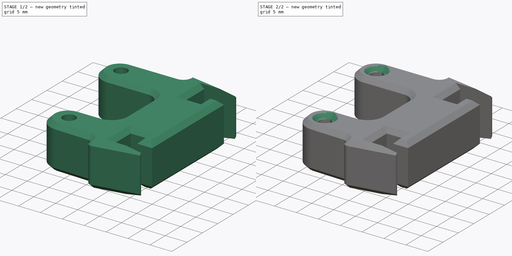
[diagram: build sequence overview — one tinted view per stage of 2, left to right]
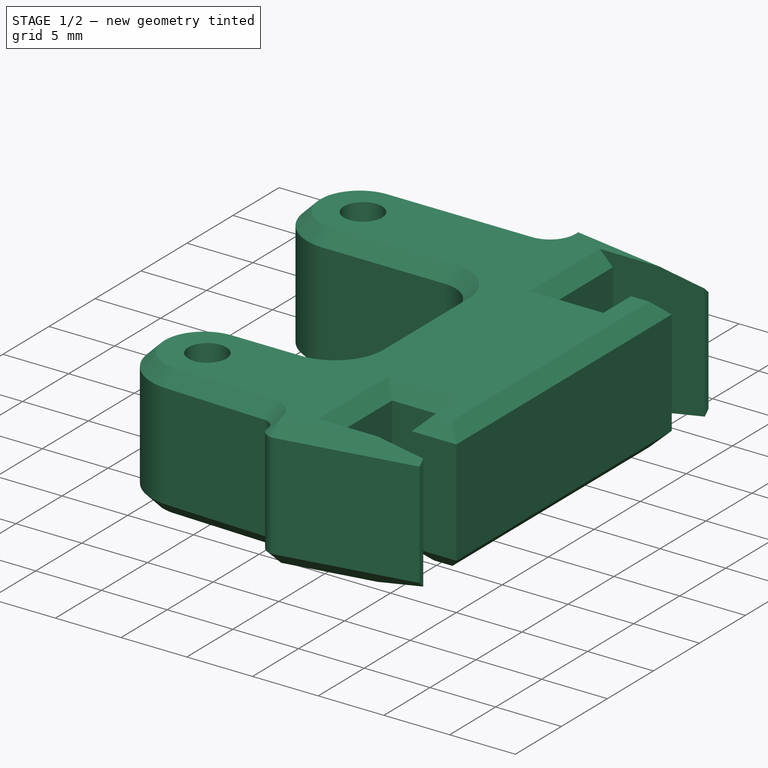
[diagram: stage 1 of 2 — iso view after this stage's code; geometry added in this stage tinted green]
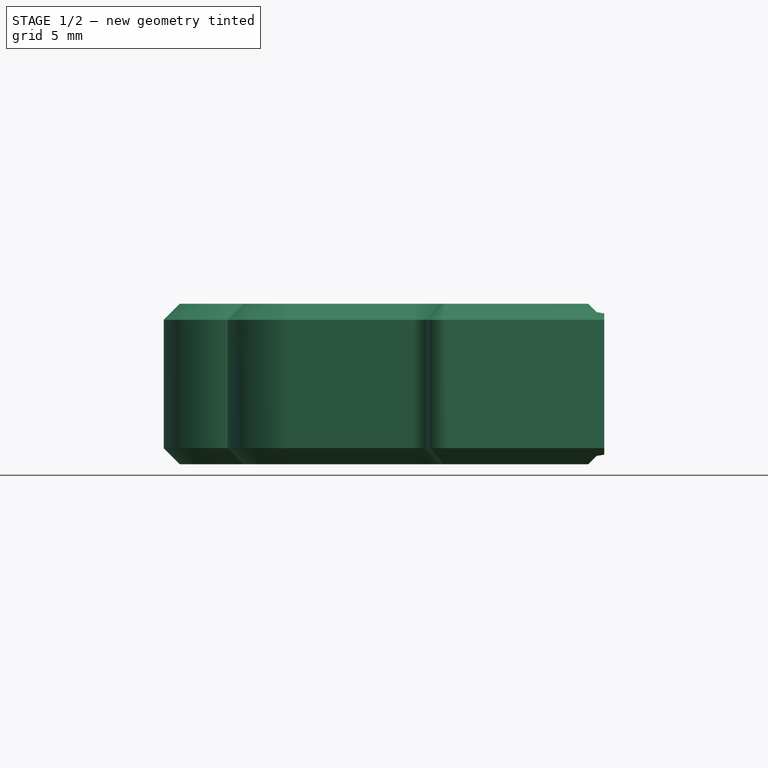
[diagram: stage 1 of 2 — front view after this stage's code; geometry added in this stage tinted green]
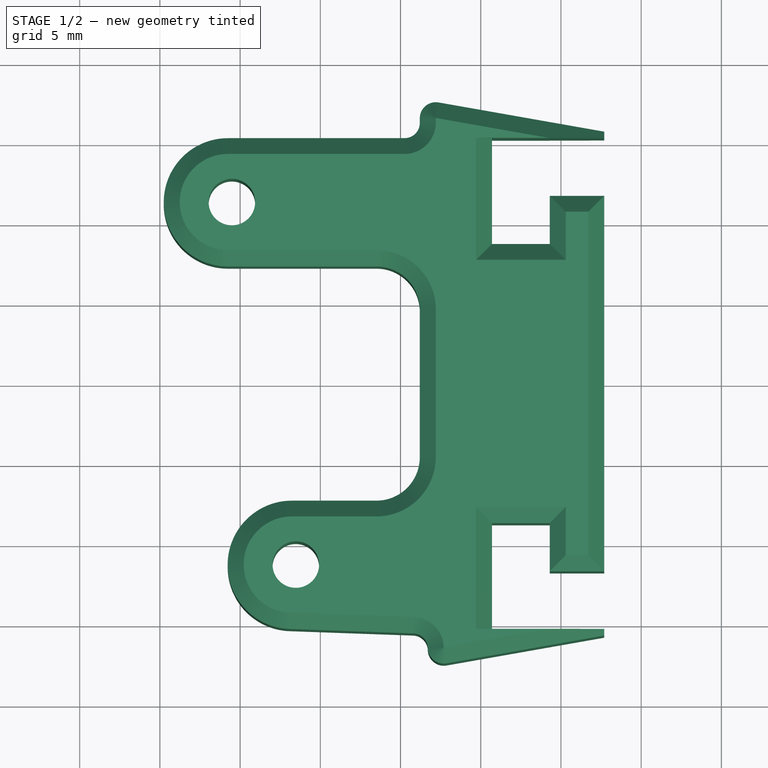
[diagram: stage 1 of 2 — top view after this stage's code; geometry added in this stage tinted green]
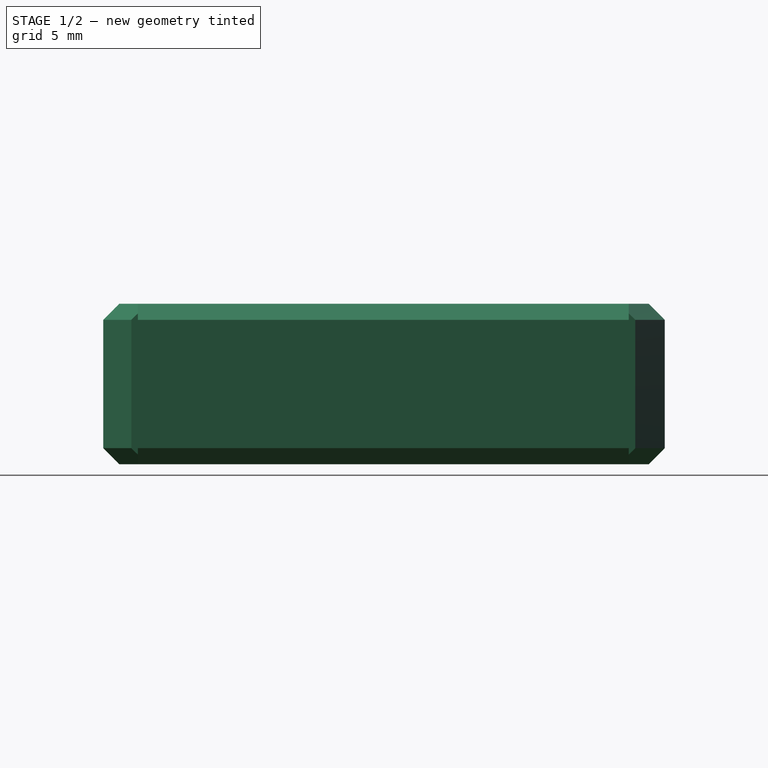
[diagram: stage 1 of 2 — right view after this stage's code; geometry added in this stage tinted green]
FCSTD DOCUMENT  (FreeCAD 1.0R39109 (Git))
Label: clamp
License: All rights reserved
LicenseURL: https://en.wikipedia.org/wiki/All_rights_reserved
objects: Sketcher::SketchObject×2, Part::Feature×1, PartDesign::FeatureBase×1, PartDesign::Hole×1, PartDesign::Pocket×1, PartDesign::Chamfer×1, PartDesign::Body×1, Measure::MeasureDistance×1, App::DocumentObjectGroup×1
note: 17 computed .brp shape members not serialized (recipe doc carries the construction recipe); baked Part::Feature solids carry a one-line shape summary decoded from their .brp

FEATURE [Part::Feature] Part__Feature  label="Body"
  shape: bbox 27.47 x 35.18 x 10.62 mm, 223 faces, 0 solids (baked)
FEATURE [PartDesign::FeatureBase] BaseFeature
  BaseFeature = -> Part__Feature
  Suppressed = false
FEATURE [Sketcher::SketchObject] Sketch
  ArcFitTolerance = 1e-06
  AttachmentSupport = -> [BaseFeature]
  ExternalGeometry = -> [BaseFeature]
  FullyConstrained = true
  MakeInternals = false
  MapMode = 5
  Placement = pos=(-6.6e-15,3.5e-15,10) rot=(0,0,1;0rad)
  sketch-geometry (2):
    g0: Circle CenterX=-25.5117 CenterY=11.3 CenterZ=0 NormalX=0 NormalY=0 NormalZ=1 AngleXU=0 Radius=1.25
    g1: Circle CenterX=-21.5267 CenterY=-11.3 CenterZ=0 NormalX=0 NormalY=0 NormalZ=1 AngleXU=0 Radius=1.25
  constraints (4):
    c: Coincident(g0,g-3)
    c: Equal(g0,g-3)
    c: Coincident(g1,g-4)
    c: Equal(g1,g-4)
FEATURE [PartDesign::Hole] Hole
  BaseFeature = -> BaseFeature
  CustomThreadClearance = 0
  Depth = 25
  DepthType = 0
  Diameter = 2.9
  DrillForDepth = false
  DrillPoint = 1
  DrillPointAngle = 118
  HoleCutCountersinkAngle = 90
  HoleCutCustomValues = false
  HoleCutDepth = 0
  HoleCutDiameter = 6.1
  HoleCutType = 0
  ModelThread = false
  Profile = -> Sketch
  Refine = true
  Suppressed = false
  Tapered = false
  TaperedAngle = 90
  TeardropAngle = 120
  TeardropRotation = 90
  ThreadClass = 0
  ThreadDepth = 25
  ThreadDepthType = 0
  ThreadDirection = 0
  ThreadFit = 0
  ThreadSize = 8
  ThreadType = 1
  Threaded = false
  UseCustomThreadClearance = false
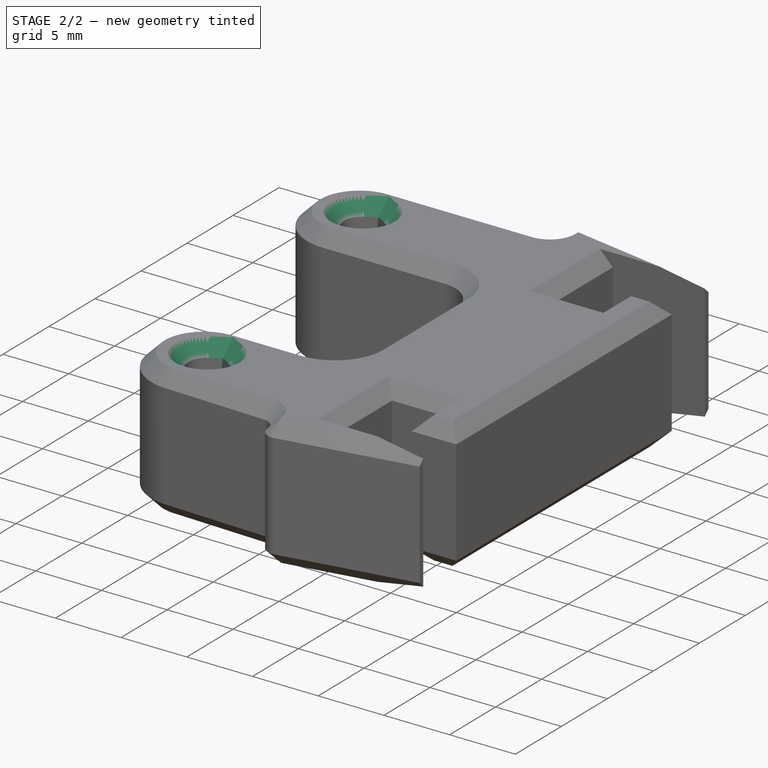
[diagram: stage 2 of 2 — iso view after this stage's code; geometry added in this stage tinted green]
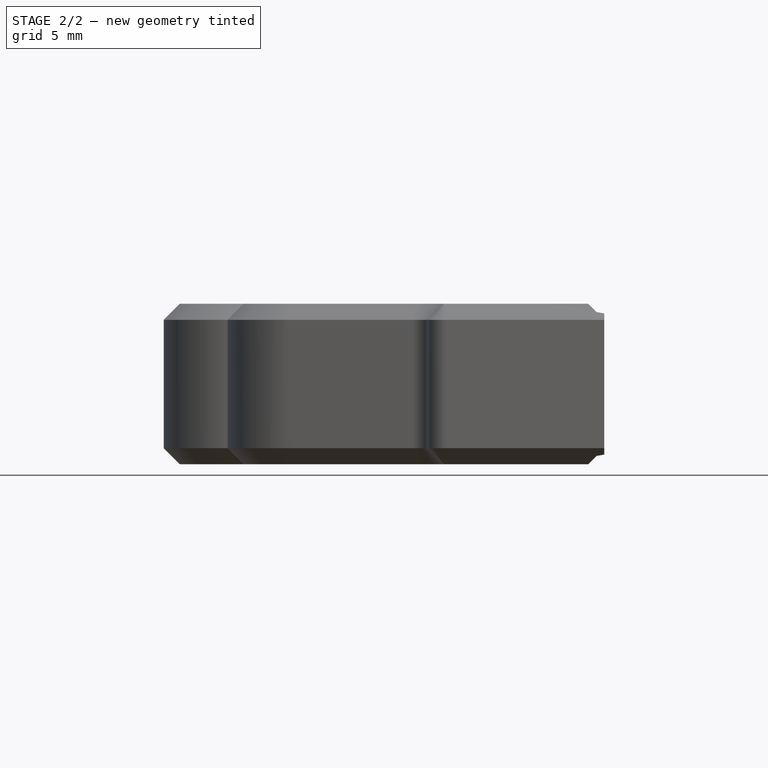
[diagram: stage 2 of 2 — front view after this stage's code; geometry added in this stage tinted green]
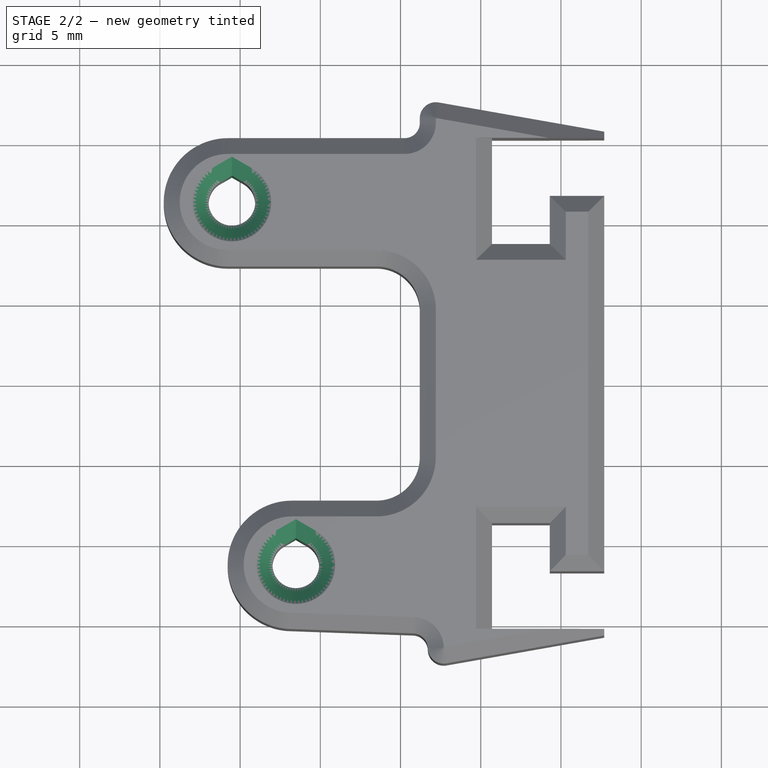
[diagram: stage 2 of 2 — top view after this stage's code; geometry added in this stage tinted green]
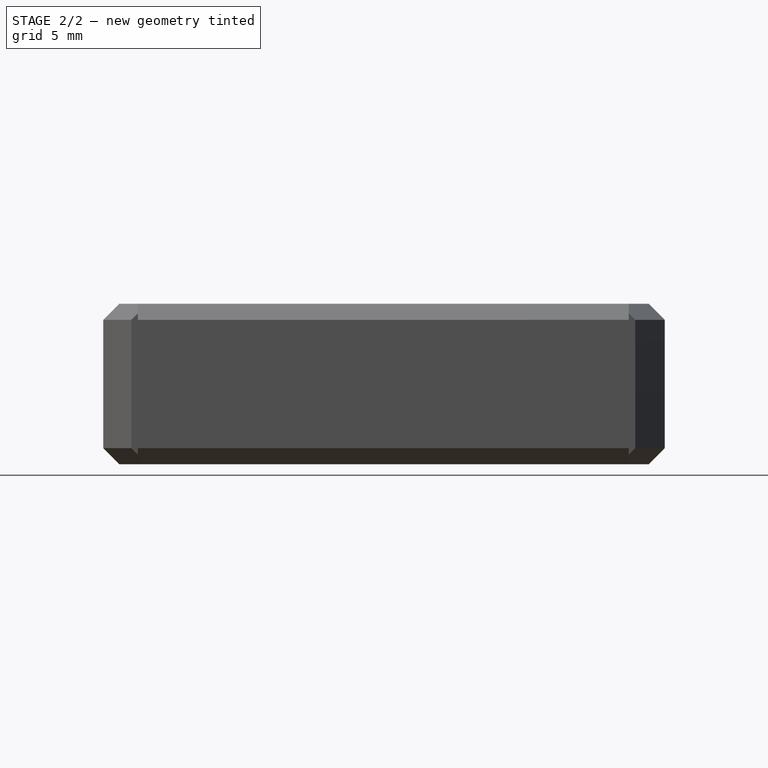
[diagram: stage 2 of 2 — right view after this stage's code; geometry added in this stage tinted green]
FEATURE [Sketcher::SketchObject] Sketch_Teardrops
  ArcFitTolerance = 1e-06
  AttachmentSupport = -> [Sketch]
  FullyConstrained = true
  MakeInternals = false
  MapMode = 2
  Placement = pos=(-6.6e-15,3.5e-15,10) rot=(0,0,1;0rad)
  expr: Constraints[15] = Sketch.Geometry[1].Center.x * 1 mm
  expr: Constraints[16] = Sketch.Geometry[1].Center.y * 1 mm
  expr: Constraints[17] = Hole.Diameter
  expr: Constraints[18] = Hole.TeardropAngle
  expr: Constraints[19] = Hole.TeardropRotation
  expr: Constraints[5] = Sketch.Geometry[0].Center.x * 1 mm
  expr: Constraints[6] = Sketch.Geometry[0].Center.y * 1 mm
  expr: Constraints[7] = Hole.Diameter
  expr: Constraints[8] = Hole.TeardropAngle
  expr: Constraints[9] = Hole.TeardropRotation
  sketch-geometry (8):
    g0: ArcOfCircle CenterX=-25.5117 CenterY=11.3 CenterZ=0 NormalX=0 NormalY=0 NormalZ=1 AngleXU=0 Radius=1.45 StartAngle=2.0944 EndAngle=7.33038
    g1: LineSegment StartX=-26.2367 StartY=12.5557 StartZ=0 EndX=-25.5117 EndY=12.9743 EndZ=0
    g2: LineSegment StartX=-24.7867 StartY=12.5557 StartZ=0 EndX=-25.5117 EndY=12.9743 EndZ=0
    g3: LineSegment [constr] StartX=-25.5117 StartY=11.3 StartZ=0 EndX=-25.5117 EndY=12.9743 EndZ=0
    g4: ArcOfCircle CenterX=-21.5267 CenterY=-11.3 CenterZ=0 NormalX=0 NormalY=0 NormalZ=1 AngleXU=0 Radius=1.45 StartAngle=2.0944 EndAngle=7.33038
    g5: LineSegment StartX=-22.2517 StartY=-10.0443 StartZ=0 EndX=-21.5267 EndY=-9.62568 EndZ=0
    g6: LineSegment StartX=-20.8017 StartY=-10.0443 StartZ=0 EndX=-21.5267 EndY=-9.62568 EndZ=0
    g7: LineSegment [constr] StartX=-21.5267 StartY=-11.3 StartZ=0 EndX=-21.5267 EndY=-9.62568 EndZ=0
  constraints (20):
    c: Coincident(g1,g2)
    c: Coincident(g1,g3)
    c: Coincident(g0,g3)
    c: Tangent(g0,g1) = 1.5708
    c: Tangent(g0,g2) = -1.5708
    c: DistanceX(g0) = -25.5117
    c: DistanceY(g0) = 11.3
    c: Diameter(g0) = 2.9
    c: Angle(g1,g2) = 2.0944
    c: Angle(g3) = 1.5708
    c: Coincident(g5,g6)
    c: Coincident(g5,g7)
    c: Coincident(g4,g7)
    c: Tangent(g4,g5) = 1.5708
    c: Tangent(g4,g6) = -1.5708
    c: DistanceX(g4) = -21.5267
    c: DistanceY(g4) = -11.3
    c: Diameter(g4) = 2.9
    c: Angle(g5,g6) = 2.0944
    c: Angle(g7) = 1.5708
FEATURE [PartDesign::Pocket] Hole_Teardrops
  BaseFeature = -> Hole
  Direction = (0,0,-1)
  Length = 25
  Length2 = 5
  Profile = -> Sketch_Teardrops
  ReferenceAxis = -> Sketch_Teardrops [N_Axis]
  Refine = true
  Suppressed = false
  Type = 0
  expr: Length = Hole.Depth
  expr: Type = Hole.DepthType
FEATURE [PartDesign::Chamfer] Chamfer
  Angle = 45
  Base = -> Hole_Teardrops [Edge122,Edge126,Edge194,Edge190]
  BaseFeature = -> Hole_Teardrops
  ChamferType = 0
  FlipDirection = false
  Refine = true
  Size = 1
  Size2 = 1
  SupportTransform = false
  Suppressed = false
  UseAllEdges = false
FEATURE [PartDesign::Body] Body  label="Body001"
  AllowCompound = false
  BaseFeature = -> Part__Feature
  Group = -> [BaseFeature,Sketch,Hole,Sketch_Teardrops,Hole_Teardrops,Chamfer]
  Origin = -> Origin
  Tip = -> Chamfer
FEATURE [Measure::MeasureDistance] Distance  label="Distance: 22.95 mm"
  Distance = 22.9486
  DistanceX = 3.98499
  DistanceY = 22.6
  DistanceZ = 1.07e-14
  Element1 = -> Body [Chamfer.Edge319]
  Element2 = -> Body [Chamfer.Edge109]
  Position1 = (-25.5117,11.3,9)
  Position2 = (-21.5267,-11.3,9)
FEATURE [App::DocumentObjectGroup] Measurements
  Group = -> [Distance]
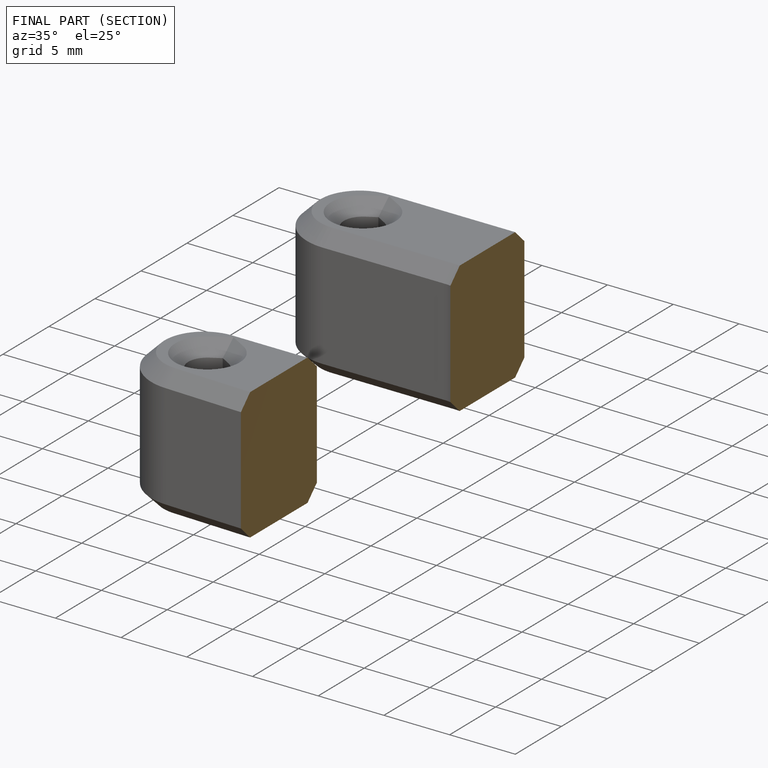
[diagram: finished part — half-section view (interior)]
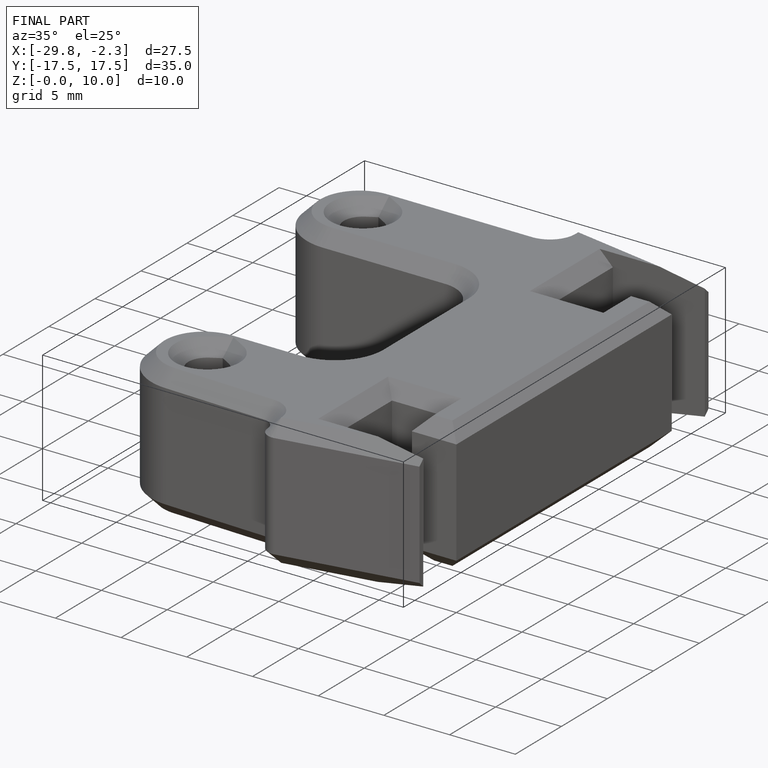
[diagram: finished part — iso view with bounding-box wireframe]
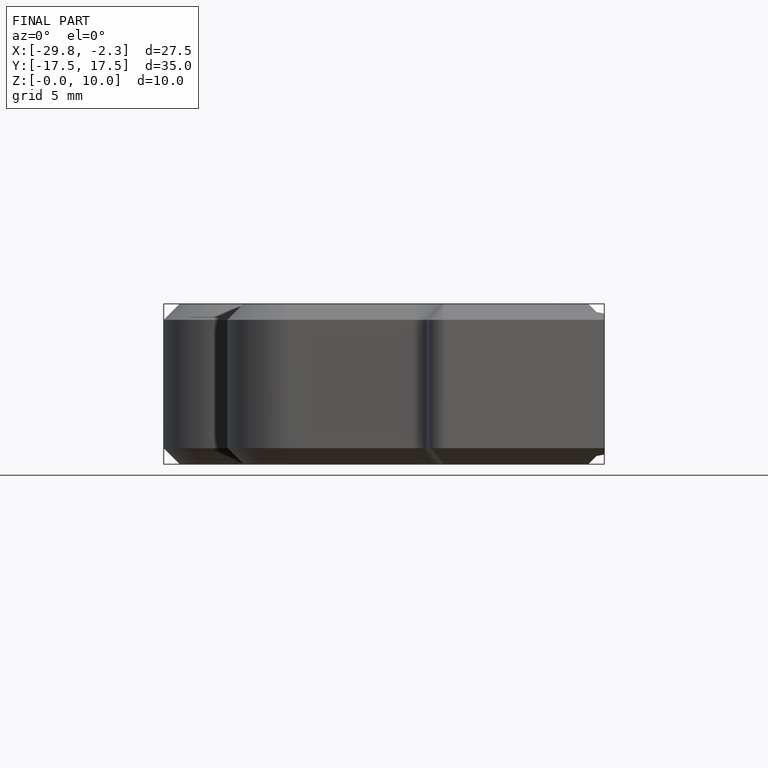
[diagram: finished part — front view with bounding-box wireframe]
